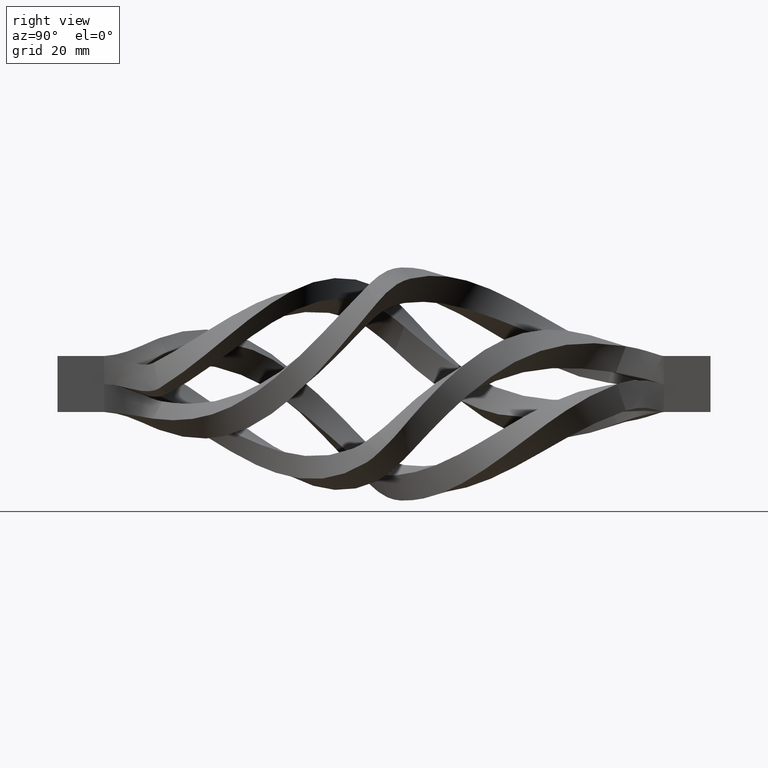
[diagram: clean part render]
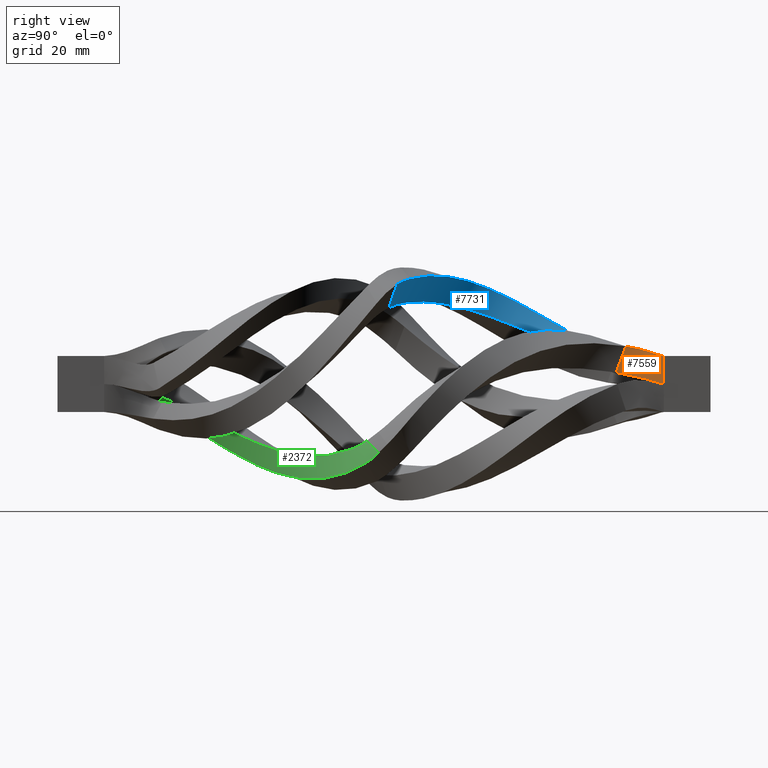
[diagram: same view with three faces highlighted in distinct colors, each labeled with its STEP entity id]
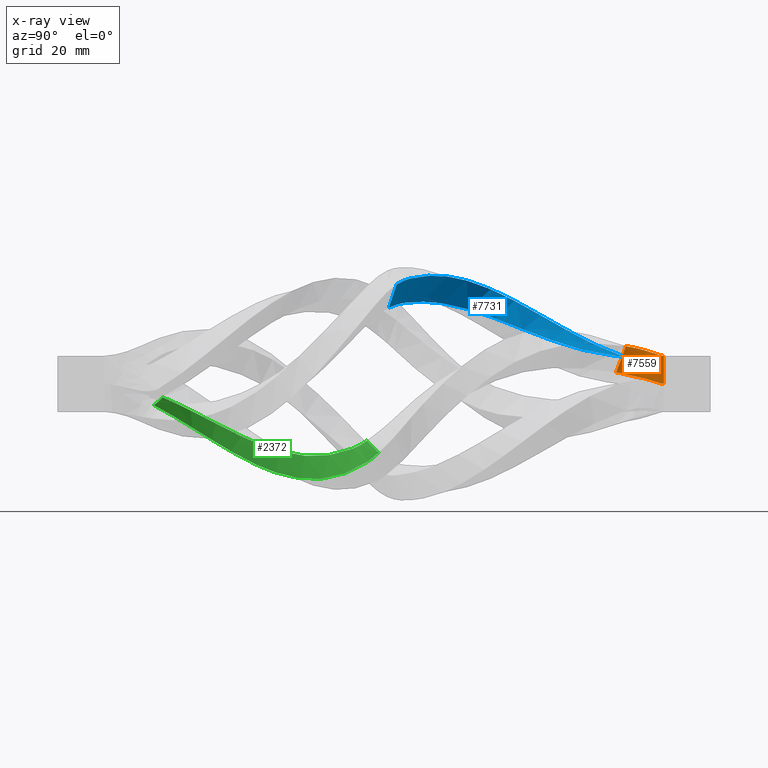
[diagram: x-ray of the same camera — body ghosted, the three highlighted faces saturated]
A machine part, right view with three faces highlighted in distinct colors.
The next image is the same camera in x-ray (body ghosted, the three faces saturated) — at least one of them is partly hidden behind the body in this view.
Their STEP definitions:

[orange] entity #7559 — the highlighted face is a freeform B-spline surface patch.
#423 = CARTESIAN_POINT ( 'NONE',  ( 6.000000000000000000, 60.00000000000000000, -7.347880794884119736E-16 ) ) ;
#563 = VERTEX_POINT ( 'NONE', #2955 ) ;
#665 = VERTEX_POINT ( 'NONE', #13592 ) ;
#668 = CARTESIAN_POINT ( 'NONE',  ( 5.688859078053799756, 51.86558042383911982, 8.089690585374965437 ) ) ;
#828 = LINE ( 'NONE', #11371, #16230 ) ;
#1740 = DIRECTION ( 'NONE',  ( -0.000000000000000000, -0.000000000000000000, 1.000000000000000000 ) ) ;
#1822 = CARTESIAN_POINT ( 'NONE',  ( 5.990876172867924510, 49.75534274506112808, 2.481154001424951350 ) ) ;
#2133 = CARTESIAN_POINT ( 'NONE',  ( 6.000000000000000888, 58.93945148934142253, 2.999999999999999112 ) ) ;
#2955 = CARTESIAN_POINT ( 'NONE',  ( 6.000000000000000000, 60.00000000000000000, 5.999999999999998224 ) ) ;
#3155 = CARTESIAN_POINT ( 'NONE',  ( 6.000000000000000888, 58.81879873133640757, -7.347880794884119736E-16 ) ) ;
#3326 = CARTESIAN_POINT ( 'NONE',  ( 6.000000000000000000, 60.00000000000000000, 5.999999999999998224 ) ) ;
#3830 = VERTEX_POINT ( 'NONE', #9400 ) ;
#3895 = EDGE_CURVE ( 'NONE', #9409, #563, #11530, .T. ) ;
#4633 = CARTESIAN_POINT ( 'NONE',  ( 5.739195260522820696, 51.51387414404278786, 7.154934488049963015 ) ) ;
#4687 = CARTESIAN_POINT ( 'NONE',  ( 6.000000000000000888, 59.05974668449263021, 5.999999999999998224 ) ) ;
#4798 = CARTESIAN_POINT ( 'NONE',  ( 6.000000000000000888, 60.00000000000000000, 2.999999999999999112 ) ) ;
#5890 = CARTESIAN_POINT ( 'NONE',  ( 6.000000000000000888, 60.00000000000000000, 0.9999999999999988898 ) ) ;
#6008 = CARTESIAN_POINT ( 'NONE',  ( 6.000000000000000888, 60.00000000000000000, -7.347880794884119736E-16 ) ) ;
#7217 = CARTESIAN_POINT ( 'NONE',  ( 5.103678342734527362, 55.98606579534537531, 2.551169762513719519 ) ) ;
#7270 = CARTESIAN_POINT ( 'NONE',  ( 4.604194961674395792, 56.18052296515681832, 4.463157269856725229 ) ) ;
#7290 = CARTESIAN_POINT ( 'NONE',  ( 4.149268215304976692, 56.40902049923965933, 7.375916144224031967 ) ) ;
#7377 = CARTESIAN_POINT ( 'NONE',  ( 6.000000000000000888, 58.81879873133640757, -7.347880794884119736E-16 ) ) ;
#7559 = ADVANCED_FACE ( 'NONE', ( #15977 ), #10293, .T. ) ;
#9078 = VECTOR ( 'NONE', #1740, 1000.000000000000000 ) ;
#9400 = CARTESIAN_POINT ( 'NONE',  ( 5.688859078053799756, 51.86558042383911982, 8.089690585374965437 ) ) ;
#9409 = VERTEX_POINT ( 'NONE', #12182 ) ;
#9952 = CARTESIAN_POINT ( 'NONE',  ( 5.688859078053799756, 51.86558042383911982, 8.089690585374965437 ) ) ;
#10180 = ORIENTED_EDGE ( 'NONE', *, *, #3895, .T. ) ;
#10293 = B_SPLINE_SURFACE_WITH_KNOTS ( 'NONE', 3, 3, ( 
 ( #9952, #12633, #4687, #13726 ),
 ( #4633, #13891, #11192, #12527 ),
 ( #15109, #7270, #2133, #4798 ),
 ( #16584, #7217, #15217, #5890 ),
 ( #16430, #13838, #7377, #6008 ) ),
 .UNSPECIFIED., .F., .F., .F.,
 ( 4, 1, 4 ),
 ( 4, 4 ),
 ( 0.000000000000000000, 0.5000000000000000000, 1.000000000000000000 ),
 ( 0.000000000000000000, 1.000000000000000000 ),
 .UNSPECIFIED. ) ;
#10623 = EDGE_CURVE ( 'NONE', #9409, #665, #15223, .T. ) ;
#10686 = ORIENTED_EDGE ( 'NONE', *, *, #13449, .F. ) ;
#11192 = CARTESIAN_POINT ( 'NONE',  ( 6.000000000000000888, 59.01964828610889668, 4.999999999999999112 ) ) ;
#11371 = CARTESIAN_POINT ( 'NONE',  ( 5.688859078053799756, 51.86558042383911982, 8.089690585374965437 ) ) ;
#11530 = LINE ( 'NONE', #423, #9078 ) ;
#12182 = CARTESIAN_POINT ( 'NONE',  ( 6.000000000000000000, 60.00000000000000000, -7.347880794884120722E-16 ) ) ;
#12242 = ORIENTED_EDGE ( 'NONE', *, *, #14324, .F. ) ;
#12527 = CARTESIAN_POINT ( 'NONE',  ( 6.000000000000000888, 60.00000000000000000, 4.999999999999999112 ) ) ;
#12633 = CARTESIAN_POINT ( 'NONE',  ( 4.149268215304975804, 56.40902049923965933, 7.375916144224031967 ) ) ;
#13449 = EDGE_CURVE ( 'NONE', #665, #3830, #828, .T. ) ;
#13592 = CARTESIAN_POINT ( 'NONE',  ( 5.990876172867924510, 49.75534274506112808, 2.481154001424951350 ) ) ;
#13629 = CARTESIAN_POINT ( 'NONE',  ( 6.000000000000000000, 60.00000000000000000, -7.347880794884120722E-16 ) ) ;
#13726 = CARTESIAN_POINT ( 'NONE',  ( 6.000000000000000888, 60.00000000000000000, 5.999999999999998224 ) ) ;
#13754 = B_SPLINE_CURVE_WITH_KNOTS ( 'NONE', 3,
 ( #668, #7290, #13858, #3326 ),
 .UNSPECIFIED., .F., .F.,
 ( 4, 4 ),
 ( 0.000000000000000000, 1.000000000000000000 ),
 .UNSPECIFIED. ) ;
#13838 = CARTESIAN_POINT ( 'NONE',  ( 5.353420033264594480, 55.88883721043965380, 1.595176008842216886 ) ) ;
#13858 = CARTESIAN_POINT ( 'NONE',  ( 6.000000000000000888, 59.05974668449263021, 6.000000000000000888 ) ) ;
#13891 = CARTESIAN_POINT ( 'NONE',  ( 4.300910464094782171, 56.33285465454537899, 6.404996519434929425 ) ) ;
#14271 = ORIENTED_EDGE ( 'NONE', *, *, #10623, .F. ) ;
#14324 = EDGE_CURVE ( 'NONE', #3830, #563, #13754, .T. ) ;
#15109 = CARTESIAN_POINT ( 'NONE',  ( 5.839867625460862577, 50.81046158445012395, 5.285422293399958171 ) ) ;
#15217 = CARTESIAN_POINT ( 'NONE',  ( 6.000000000000000888, 58.85901631733808159, 0.9999999999999988898 ) ) ;
#15223 = B_SPLINE_CURVE_WITH_KNOTS ( 'NONE', 3,
 ( #13629, #3155, #16220, #1822 ),
 .UNSPECIFIED., .F., .F.,
 ( 4, 4 ),
 ( 0.000000000000000000, 1.000000000000000000 ),
 .UNSPECIFIED. ) ;
#15335 = EDGE_LOOP ( 'NONE', ( #10686, #14271, #10180, #12242 ) ) ;
#15336 = DIRECTION ( 'NONE',  ( -0.05033618246902087090, 0.3517062797963322329, 0.9347560973250024219 ) ) ;
#15977 = FACE_OUTER_BOUND ( 'NONE', #15335, .T. ) ;
#16220 = CARTESIAN_POINT ( 'NONE',  ( 5.353420033264594480, 55.88883721043965380, 1.595176008842216886 ) ) ;
#16230 = VECTOR ( 'NONE', #15336, 1000.000000000000227 ) ;
#16430 = CARTESIAN_POINT ( 'NONE',  ( 5.990876172867924510, 49.75534274506112808, 2.481154001424951350 ) ) ;
#16584 = CARTESIAN_POINT ( 'NONE',  ( 5.940539990398903569, 50.10704902485746004, 3.415910098749953772 ) ) ;

[blue] entity #7731 — the highlighted face is a freeform B-spline surface patch.
#210 = B_SPLINE_CURVE_WITH_KNOTS ( 'NONE', 3,
 ( #8648, #11308, #7378, #9847, #4744, #8748, #6059, #858, #16531, #10062 ),
 .UNSPECIFIED., .F., .F.,
 ( 4, 2, 2, 2, 4 ),
 ( 0.000000000000000000, 0.1250000000000000000, 0.2500000000000000000, 0.3750000000000000555, 0.4538396521845925458 ),
 .UNSPECIFIED. ) ;
#308 = VERTEX_POINT ( 'NONE', #12635 ) ;
#331 = EDGE_CURVE ( 'NONE', #640, #421, #210, .T. ) ;
#409 = CARTESIAN_POINT ( 'NONE',  ( -2.481154001424930478, 49.75534274506112808, 5.990876172867933391 ) ) ;
#419 = CARTESIAN_POINT ( 'NONE',  ( -7.871336419445845500, 35.19891375716233739, 13.73985255241179360 ) ) ;
#421 = VERTEX_POINT ( 'NONE', #3588 ) ;
#640 = VERTEX_POINT ( 'NONE', #409 ) ;
#858 = CARTESIAN_POINT ( 'NONE',  ( 7.896205514842380424, 9.627354338902897268, 17.68805363085553850 ) ) ;
#995 = CARTESIAN_POINT ( 'NONE',  ( 13.23155807589161093, 3.255832955249024607, 17.16654772645953386 ) ) ;
#1117 = EDGE_CURVE ( 'NONE', #640, #4060, #2533, .T. ) ;
#1434 = CARTESIAN_POINT ( 'NONE',  ( -1.501488303775448729, 49.38673902164023133, 6.043630716493420429 ) ) ;
#1489 = CARTESIAN_POINT ( 'NONE',  ( -2.562942253250463764, 28.92200941172778883, 12.10434559238648156 ) ) ;
#1543 = CARTESIAN_POINT ( 'NONE',  ( -3.306979992346402497, 33.08867607838434566, 10.32305276607643663 ) ) ;
#1855 = CARTESIAN_POINT ( 'NONE',  ( 14.77120416769230893, 5.611525247894569191, 22.58102704819105710 ) ) ;
#2406 = CARTESIAN_POINT ( 'NONE',  ( 14.89051244037024979, 1.018812119815129202, 16.31904850140109531 ) ) ;
#2533 = LINE ( 'NONE', #7129, #5633 ) ;
#2849 = FACE_OUTER_BOUND ( 'NONE', #9331, .T. ) ;
#3221 = CARTESIAN_POINT ( 'NONE',  ( 14.31085686850480521, 6.038953362827090388, 23.14983347679098813 ) ) ;
#3395 = ORIENTED_EDGE ( 'NONE', *, *, #3815, .T. ) ;
#3588 = CARTESIAN_POINT ( 'NONE',  ( 12.29236199166848031, 4.374255416700081334, 17.37559370592639496 ) ) ;
#3815 = EDGE_CURVE ( 'NONE', #9228, #9003, #12150, .T. ) ;
#3841 = CARTESIAN_POINT ( 'NONE',  ( 14.51225737099293056, 1.578695944257694661, 16.58619950043980751 ) ) ;
#3959 = CARTESIAN_POINT ( 'NONE',  ( 15.78817477883093545, 1.563561243080954011, 18.01005494026538756 ) ) ;
#4060 = VERTEX_POINT ( 'NONE', #7392 ) ;
#4102 = CARTESIAN_POINT ( 'NONE',  ( -1.883949913618561789, 28.55340568830689918, 11.37577328924151665 ) ) ;
#4156 = CARTESIAN_POINT ( 'NONE',  ( 12.64379073371017981, 3.928539582183664169, 17.69712817394390214 ) ) ;
#4268 = CARTESIAN_POINT ( 'NONE',  ( 0.5734308522061156710, 20.58867607839445668, 15.30509392793214474 ) ) ;
#4317 = CARTESIAN_POINT ( 'NONE',  ( 9.688626555880240687, 10.19891375716430026, 23.57156289030776009 ) ) ;
#4744 = CARTESIAN_POINT ( 'NONE',  ( -2.562942253250463764, 28.92200941172778883, 12.10434559238648156 ) ) ;
#5480 = CARTESIAN_POINT ( 'NONE',  ( 2.969982990981159698, 16.42200941173593165, 16.70657156214826244 ) ) ;
#5598 = CARTESIAN_POINT ( 'NONE',  ( 0.9654777601131434572, 20.22007235497356703, 14.38959001194128184 ) ) ;
#5633 = VECTOR ( 'NONE', #7352, 1000.000000000000000 ) ;
#5702 = CARTESIAN_POINT ( 'NONE',  ( 18.85640108571281104, 1.865580423839115154, 21.28252657224317801 ) ) ;
#5726 = CARTESIAN_POINT ( 'NONE',  ( -1.671017872391127757, 22.69891375717245197, 20.54630755611553994 ) ) ;
#5832 = CARTESIAN_POINT ( 'NONE',  ( 1.689091600227907053, 18.53224709051392338, 22.26239621908423061 ) ) ;
#5910 = CARTESIAN_POINT ( 'NONE',  ( 17.56678325862629109, 2.757052910245190169, 21.36584081101665333 ) ) ;
#6059 = CARTESIAN_POINT ( 'NONE',  ( 2.969982990981159698, 16.42200941173593165, 16.70657156214826244 ) ) ;
#6353 = B_SPLINE_CURVE_WITH_KNOTS ( 'NONE', 3,
 ( #11549, #6354, #11429, #8985 ),
 .UNSPECIFIED., .F., .F.,
 ( 4, 4 ),
 ( 3.737071103925071998E-16, 0.004174167867119415662 ),
 .UNSPECIFIED. ) ;
#6354 = CARTESIAN_POINT ( 'NONE',  ( 15.79547226800087323, 4.669048107120935320, 22.34701225733667229 ) ) ;
#6736 = CARTESIAN_POINT ( 'NONE',  ( -3.082959138526154774, 45.58913488375011980, 6.423871555035034042 ) ) ;
#6908 = CARTESIAN_POINT ( 'NONE',  ( -2.481154001424930478, 49.75534274506112808, 5.990876172867933391 ) ) ;
#7129 = CARTESIAN_POINT ( 'NONE',  ( -8.089690585374945897, 51.86558042383911982, 5.688859078053828178 ) ) ;
#7352 = DIRECTION ( 'NONE',  ( -0.9347560973250026439, 0.3517062797963322329, -0.05033618246901760962 ) ) ;
#7378 = CARTESIAN_POINT ( 'NONE',  ( -3.560167904446282172, 41.42200941173791051, 7.477032805050003006 ) ) ;
#7392 = CARTESIAN_POINT ( 'NONE',  ( -8.089690585374945897, 51.86558042383911982, 5.688859078053828178 ) ) ;
#7416 = ORIENTED_EDGE ( 'NONE', *, *, #331, .F. ) ;
#7731 = ADVANCED_FACE ( 'NONE', ( #2849 ), #10891, .T. ) ;
#7883 = B_SPLINE_CURVE_WITH_KNOTS ( 'NONE', 3,
 ( #14767, #10857, #14825, #419, #13553, #5726, #5832, #15002, #9725, #1855 ),
 .UNSPECIFIED., .F., .F.,
 ( 4, 2, 2, 2, 4 ),
 ( 0.000000000000000000, 0.1250000000000000000, 0.2500000000000000000, 0.3750000000000000000, 0.4625701184507730601 ),
 .UNSPECIFIED. ) ;
#8027 = CARTESIAN_POINT ( 'NONE',  ( 14.89051244037024979, 1.018812119815129202, 16.31904850140109531 ) ) ;
#8055 = CARTESIAN_POINT ( 'NONE',  ( -2.509705452625734523, 32.72007235496344890, 9.726226571523675091 ) ) ;
#8222 = CARTESIAN_POINT ( 'NONE',  ( -9.012098891671152856, 43.53224709051590224, 9.145660649692288757 ) ) ;
#8225 = EDGE_CURVE ( 'NONE', #9003, #421, #16647, .T. ) ;
#8494 = ORIENTED_EDGE ( 'NONE', *, *, #9722, .T. ) ;
#8527 = EDGE_CURVE ( 'NONE', #4060, #308, #7883, .T. ) ;
#8648 = CARTESIAN_POINT ( 'NONE',  ( -2.481154001424930478, 49.75534274506112808, 5.990876172867933391 ) ) ;
#8748 = CARTESIAN_POINT ( 'NONE',  ( 0.5734308522061156710, 20.58867607839445668, 15.30509392793214474 ) ) ;
#8985 = CARTESIAN_POINT ( 'NONE',  ( 17.56678325862629109, 2.757052910245190169, 21.36584081101665333 ) ) ;
#9003 = VERTEX_POINT ( 'NONE', #2406 ) ;
#9058 = CARTESIAN_POINT ( 'NONE',  ( 12.76846861792104981, 3.817660044143598164, 17.29767923280266828 ) ) ;
#9228 = VERTEX_POINT ( 'NONE', #5910 ) ;
#9331 = EDGE_LOOP ( 'NONE', ( #8494, #3395, #14034, #7416, #14080, #9972 ) ) ;
#9477 = CARTESIAN_POINT ( 'NONE',  ( -7.871336419445845500, 35.19891375716233739, 13.73985255241179360 ) ) ;
#9722 = EDGE_CURVE ( 'NONE', #308, #9228, #6353, .T. ) ;
#9725 = CARTESIAN_POINT ( 'NONE',  ( 11.59851668856338591, 8.530863869279510681, 23.30589175563066462 ) ) ;
#9847 = CARTESIAN_POINT ( 'NONE',  ( -3.306979992346402497, 33.08867607838434566, 10.32305276607643663 ) ) ;
#9972 = ORIENTED_EDGE ( 'NONE', *, *, #8527, .T. ) ;
#10062 = CARTESIAN_POINT ( 'NONE',  ( 12.29236199166848031, 4.374255416700081334, 17.37559370592639496 ) ) ;
#10191 = CARTESIAN_POINT ( 'NONE',  ( 12.29236199166848031, 4.374255416700081334, 17.37559370592639496 ) ) ;
#10418 = CARTESIAN_POINT ( 'NONE',  ( 14.89051244037024979, 1.018812119815129202, 16.31904850140109531 ) ) ;
#10779 = CARTESIAN_POINT ( 'NONE',  ( -1.671017872391127757, 22.69891375717245197, 20.54630755611553994 ) ) ;
#10836 = CARTESIAN_POINT ( 'NONE',  ( -6.450139065575586805, 31.03224709050578412, 16.27538518889920738 ) ) ;
#10857 = CARTESIAN_POINT ( 'NONE',  ( -8.743912844424988506, 47.70121216039423473, 7.099997603294688098 ) ) ;
#10891 = B_SPLINE_SURFACE_WITH_KNOTS ( 'NONE', 1, 3, ( 
 ( #1434, #13471, #13371, #8055, #4102, #5598, #13249, #14574, #11993, #12103 ),
 ( #6908, #6736, #15893, #1543, #1489, #4268, #5480, #12050, #4156, #16058 ),
 ( #16008, #13312, #8222, #9477, #10836, #10779, #12159, #4317, #3221, #5702 ) ),
 .UNSPECIFIED., .F., .F., .F.,
 ( 2, 1, 2 ),
 ( 4, 2, 2, 2, 4 ),
 ( -0.1746740318059077091, 0.000000000000000000, 1.000000000000000000 ),
 ( 0.000000000000000000, 0.1250000000000000000, 0.2500000000000000000, 0.3750000000000000000, 0.5000000000000000000 ),
 .UNSPECIFIED. ) ;
#11308 = CARTESIAN_POINT ( 'NONE',  ( -3.082959138526154774, 45.58913488375011980, 6.423871555035034042 ) ) ;
#11429 = CARTESIAN_POINT ( 'NONE',  ( 16.73402622485937385, 3.726573686082967907, 21.93621844062487725 ) ) ;
#11549 = CARTESIAN_POINT ( 'NONE',  ( 14.77120416769230893, 5.611525247894569191, 22.58102704819105710 ) ) ;
#11993 = CARTESIAN_POINT ( 'NONE',  ( 12.35259757065851183, 3.559905098339928742, 16.74468215444614927 ) ) ;
#12050 = CARTESIAN_POINT ( 'NONE',  ( 9.011769354755154282, 8.088676078386306756, 17.91031437934369919 ) ) ;
#12103 = CARTESIAN_POINT ( 'NONE',  ( 15.86954119634394900, -0.6132609783597698927, 15.39959021188763266 ) ) ;
#12150 = B_SPLINE_CURVE_WITH_KNOTS ( 'NONE', 3,
 ( #16845, #15920, #3959, #8027 ),
 .UNSPECIFIED., .F., .F.,
 ( 4, 4 ),
 ( 3.576224061345498009E-18, 0.005971390650076215112 ),
 .UNSPECIFIED. ) ;
#12159 = CARTESIAN_POINT ( 'NONE',  ( 1.689091600227907053, 18.53224709051392338, 22.26239621908423061 ) ) ;
#12635 = CARTESIAN_POINT ( 'NONE',  ( 14.77120416769230893, 5.611525247894569191, 22.58102704819105710 ) ) ;
#13249 = CARTESIAN_POINT ( 'NONE',  ( 3.193721454509506952, 16.05340568831503845, 15.73611326931458443 ) ) ;
#13312 = CARTESIAN_POINT ( 'NONE',  ( -8.743912844424988506, 47.70121216039423473, 7.099997603294688098 ) ) ;
#13371 = CARTESIAN_POINT ( 'NONE',  ( -2.607857137780150936, 41.05340568831701376, 7.185566851842732916 ) ) ;
#13471 = CARTESIAN_POINT ( 'NONE',  ( -2.094137530850210815, 45.22020983035304909, 6.305769892176524394 ) ) ;
#13553 = CARTESIAN_POINT ( 'NONE',  ( -6.450139065575586805, 31.03224709050578412, 16.27538518889920738 ) ) ;
#14034 = ORIENTED_EDGE ( 'NONE', *, *, #8225, .T. ) ;
#14080 = ORIENTED_EDGE ( 'NONE', *, *, #1117, .T. ) ;
#14190 = CARTESIAN_POINT ( 'NONE',  ( 14.10324769908345921, 2.136389901893516630, 16.81048505293325945 ) ) ;
#14574 = CARTESIAN_POINT ( 'NONE',  ( 8.893539978477774000, 7.720072354965415329, 16.92144127687841504 ) ) ;
#14767 = CARTESIAN_POINT ( 'NONE',  ( -8.089690585374945897, 51.86558042383911982, 5.688859078053828178 ) ) ;
#14825 = CARTESIAN_POINT ( 'NONE',  ( -9.012098891671152856, 43.53224709051590224, 9.145660649692288757 ) ) ;
#15002 = CARTESIAN_POINT ( 'NONE',  ( 8.490939972524371271, 11.44657647547430379, 23.37555507657938847 ) ) ;
#15893 = CARTESIAN_POINT ( 'NONE',  ( -3.560167904446282172, 41.42200941173791051, 7.477032805050003006 ) ) ;
#15920 = CARTESIAN_POINT ( 'NONE',  ( 16.67925081541167742, 2.150762132664413517, 19.69052984273396234 ) ) ;
#16008 = CARTESIAN_POINT ( 'NONE',  ( -8.089690585374945897, 51.86558042383911982, 5.688859078053828178 ) ) ;
#16058 = CARTESIAN_POINT ( 'NONE',  ( 16.31368727022396925, -0.2446572549388778550, 16.27438286508103005 ) ) ;
#16531 = CARTESIAN_POINT ( 'NONE',  ( 10.04464422549537161, 7.001963662040213698, 17.74343094201081783 ) ) ;
#16647 = B_SPLINE_CURVE_WITH_KNOTS ( 'NONE', 3,
 ( #10418, #3841, #14190, #995, #9058, #10191 ),
 .UNSPECIFIED., .F., .F.,
 ( 4, 2, 4 ),
 ( 0.002085578456540579037, 0.004264486155504468301, 0.006443393854468356698 ),
 .UNSPECIFIED. ) ;
#16845 = CARTESIAN_POINT ( 'NONE',  ( 17.56678325862629109, 2.757052910245190169, 21.36584081101665333 ) ) ;

[green] entity #2372 — the highlighted face is a freeform B-spline surface patch.
#107 = B_SPLINE_CURVE_WITH_KNOTS ( 'NONE', 3,
 ( #1918, #11091, #6012, #752, #16253, #3415, #3190, #7276, #12363, #5835, #4698, #649, #15007, #9849, #9960 ),
 .UNSPECIFIED., .F., .F.,
 ( 4, 2, 2, 1, 1, 1, 2, 2, 4 ),
 ( 0.000000000000000000, 0.2499999999999902855, 0.3749999999999866773, 0.4374999999999849010, 0.4687499999999842903, 0.4843749999999828471, 0.4921874999999831801, 0.4999999999999835687, 1.000000000000000000 ),
 .UNSPECIFIED. ) ;
#247 = EDGE_CURVE ( 'NONE', #1937, #581, #13278, .T. ) ;
#252 = B_SPLINE_CURVE_WITH_KNOTS ( 'NONE', 3,
 ( #3850, #5177, #15637, #14320, #2564, #6433, #10320, #12958, #3738, #12900 ),
 .UNSPECIFIED., .F., .F.,
 ( 4, 2, 2, 2, 4 ),
 ( 0.5369479693597313252, 0.6250000000000000000, 0.7500000000000000000, 0.8750000000000000000, 0.9942052857296589385 ),
 .UNSPECIFIED. ) ;
#450 = CARTESIAN_POINT ( 'NONE',  ( 1.925302999129456571, -22.94357101209656946, -14.46179258143628310 ) ) ;
#581 = VERTEX_POINT ( 'NONE', #5660 ) ;
#649 = CARTESIAN_POINT ( 'NONE',  ( -5.502870079988494645, -48.45934849062846439, -3.847961226231278786 ) ) ;
#730 = CARTESIAN_POINT ( 'NONE',  ( 20.57069826401018275, -4.173495097007560162, -17.58015250693530263 ) ) ;
#752 = CARTESIAN_POINT ( 'NONE',  ( -4.792916099916925354, -48.07123800673850411, -3.504732002196979224 ) ) ;
#838 = CARTESIAN_POINT ( 'NONE',  ( 19.46140407676698914, -2.110237678777993064, -11.58478618451146325 ) ) ;
#1016 = CARTESIAN_POINT ( 'NONE',  ( 4.685942898503458132, -19.13273502714634589, -14.67193410522135899 ) ) ;
#1119 = CARTESIAN_POINT ( 'NONE',  ( 17.89959494004027363, -3.670163752019282466, -12.15990376714979782 ) ) ;
#1238 = EDGE_CURVE ( 'NONE', #9395, #15308, #252, .T. ) ;
#1246 = CARTESIAN_POINT ( 'NONE',  ( 18.82306356033108230, -3.219364478633718551, -12.61547157010931741 ) ) ;
#1294 = B_SPLINE_CURVE_WITH_KNOTS ( 'NONE', 3,
 ( #4428, #3219, #12388, #7020, #450, #8560, #9645, #5754, #16165, #10943 ),
 .UNSPECIFIED., .F., .F.,
 ( 4, 2, 2, 2, 4 ),
 ( 0.5456399617030078808, 0.6250000000000000000, 0.7500000000000000000, 0.8750000000000000000, 0.9534304676751663710 ),
 .UNSPECIFIED. ) ;
#1918 = CARTESIAN_POINT ( 'NONE',  ( -3.744984471185448083, -47.45303054060136105, -2.883072554582832403 ) ) ;
#1937 = VERTEX_POINT ( 'NONE', #1119 ) ;
#2068 = CARTESIAN_POINT ( 'NONE',  ( 3.206194389843958437, -20.83333333331857773, -20.01761723837864793 ) ) ;
#2119 = CARTESIAN_POINT ( 'NONE',  ( 7.308853124259217182, -16.66666666663408236, -20.79692714708302503 ) ) ;
#2363 = B_SPLINE_CURVE_WITH_KNOTS ( 'NONE', 3,
 ( #10440, #5014, #6328, #15531, #10330, #2573, #7752, #1246, #7639, #16860 ),
 .UNSPECIFIED., .F., .F.,
 ( 4, 3, 3, 4 ),
 ( 8.182674270850422113E-18, 0.002228085361064247819, 0.004688705739107873471, 0.006374819136601633102 ),
 .UNSPECIFIED. ) ;
#2372 = ADVANCED_FACE ( 'NONE', ( #10102 ), #7398, .T. ) ;
#2404 = CARTESIAN_POINT ( 'NONE',  ( -2.642342616001525091, -52.11023767877799884, -1.176817918657999673 ) ) ;
#2564 = CARTESIAN_POINT ( 'NONE',  ( 3.206194389843958437, -20.83333333331857773, -20.01761723837864793 ) ) ;
#2573 = CARTESIAN_POINT ( 'NONE',  ( 19.96133559539782709, -2.670944248171018387, -13.17597740720851363 ) ) ;
#2841 = VERTEX_POINT ( 'NONE', #13082 ) ;
#3128 = CARTESIAN_POINT ( 'NONE',  ( 15.54221954633418967, -6.677204624968187119, -13.88375974202546637 ) ) ;
#3190 = CARTESIAN_POINT ( 'NONE',  ( -5.264533078400011945, -48.33150293549421406, -3.738905997707514306 ) ) ;
#3219 = CARTESIAN_POINT ( 'NONE',  ( 13.21466162151130597, -9.322280606939452596, -14.91693324537896359 ) ) ;
#3415 = CARTESIAN_POINT ( 'NONE',  ( -5.156603167105293650, -48.27265633894806740, -3.687127710220951649 ) ) ;
#3453 = CARTESIAN_POINT ( 'NONE',  ( -3.206194389844457593, -29.16666666668144003, -16.72266413585992240 ) ) ;
#3618 = CARTESIAN_POINT ( 'NONE',  ( 17.89959494004027363, -3.670163752019282466, -12.15990376714979782 ) ) ;
#3738 = CARTESIAN_POINT ( 'NONE',  ( -8.021552348902119434, -45.44813392395698770, -6.596782052346583214 ) ) ;
#3850 = CARTESIAN_POINT ( 'NONE',  ( 20.86003899735237965, -3.697801499753341936, -16.81025835379850619 ) ) ;
#3971 = CARTESIAN_POINT ( 'NONE',  ( 22.50874354534826693, -1.990862580611321153, -15.56972698206046246 ) ) ;
#4428 = CARTESIAN_POINT ( 'NONE',  ( 15.54221954633418967, -6.677204624968187119, -13.88375974202546637 ) ) ;
#4698 = CARTESIAN_POINT ( 'NONE',  ( -5.495339862539137421, -48.45533909466228550, -3.844590283873442704 ) ) ;
#4778 = CARTESIAN_POINT ( 'NONE',  ( -5.507995980437145889, -33.33333333334008586, -14.22728425483480130 ) ) ;
#4831 = CARTESIAN_POINT ( 'NONE',  ( 12.11652040694255206, -10.44357101214390582, -15.41058954648980794 ) ) ;
#4894 = CARTESIAN_POINT ( 'NONE',  ( 16.41739467692886123, -5.658642207063322438, -13.43550320578311563 ) ) ;
#5011 = CARTESIAN_POINT ( 'NONE',  ( 11.46105685149253972, -10.79940169387817761, -14.70726409737672213 ) ) ;
#5014 = CARTESIAN_POINT ( 'NONE',  ( 22.54500788658898358, -1.452157125914134816, -14.44478759546961477 ) ) ;
#5067 = CARTESIAN_POINT ( 'NONE',  ( 1.709317633419639604, -23.29940169383084125, -13.52496309765003701 ) ) ;
#5177 = CARTESIAN_POINT ( 'NONE',  ( 17.89002939505458656, -6.633252906475789246, -18.64158208520242255 ) ) ;
#5660 = CARTESIAN_POINT ( 'NONE',  ( 15.54221954633418967, -6.677204624968187119, -13.88375974202546637 ) ) ;
#5754 = CARTESIAN_POINT ( 'NONE',  ( -4.379310946182334519, -42.22458660127931296, -5.268605671281044067 ) ) ;
#5835 = CARTESIAN_POINT ( 'NONE',  ( -5.477689830299834917, -48.44593346211443929, -3.836669114360415023 ) ) ;
#6012 = CARTESIAN_POINT ( 'NONE',  ( -4.349285607719246549, -47.81831152284541986, -3.263846608040394059 ) ) ;
#6044 = CARTESIAN_POINT ( 'NONE',  ( 16.00371721929989732, -8.333333333365912310, -19.58162914298600654 ) ) ;
#6315 = CARTESIAN_POINT ( 'NONE',  ( 17.56866734672370001, -4.162589882264164487, -12.52701778029246604 ) ) ;
#6328 = CARTESIAN_POINT ( 'NONE',  ( 21.93016473859206172, -1.739551736201305765, -14.14316380642242699 ) ) ;
#6433 = CARTESIAN_POINT ( 'NONE',  ( -3.206194389844457593, -29.16666666668144003, -16.72266413585992240 ) ) ;
#6441 = CARTESIAN_POINT ( 'NONE',  ( -1.848790184614109267, -52.46606836051226708, -0.6598553903376261909 ) ) ;
#7020 = CARTESIAN_POINT ( 'NONE',  ( 5.064404399694200087, -18.77690434541207409, -15.55571351888310261 ) ) ;
#7276 = CARTESIAN_POINT ( 'NONE',  ( -5.389190804616990960, -48.39862195317259363, -3.796575353863541835 ) ) ;
#7398 = B_SPLINE_SURFACE_WITH_KNOTS ( 'NONE', 1, 3, ( 
 ( #8677, #730, #6044, #2119, #2068, #3453, #4778, #15254, #7417, #16567 ),
 ( #838, #11346, #4831, #7473, #16621, #8789, #11399, #8902, #11756, #2404 ),
 ( #12844, #11583, #5011, #1016, #5067, #14151, #16968, #14269, #10269, #6441 ) ),
 .UNSPECIFIED., .F., .F., .F.,
 ( 2, 1, 2 ),
 ( 4, 2, 2, 2, 4 ),
 ( 0.000000000000000000, 1.000000000000000000, 1.168621139368683615 ),
 ( 0.5000000000000000000, 0.6250000000000000000, 0.7500000000000000000, 0.8750000000000000000, 1.000000000000000000 ),
 .UNSPECIFIED. ) ;
#7417 = CARTESIAN_POINT ( 'NONE',  ( -8.034543373215420559, -45.83455923405127663, -6.348309091203531374 ) ) ;
#7473 = CARTESIAN_POINT ( 'NONE',  ( 5.064404399694200087, -18.77690434541207409, -15.55571351888310261 ) ) ;
#7639 = CARTESIAN_POINT ( 'NONE',  ( 18.36091090178780050, -3.443867057402481890, -12.38764073584170511 ) ) ;
#7752 = CARTESIAN_POINT ( 'NONE',  ( 19.28589992136754105, -2.996369609247115928, -12.84338060590274644 ) ) ;
#7972 = EDGE_CURVE ( 'NONE', #9395, #12827, #11934, .T. ) ;
#8444 = ORIENTED_EDGE ( 'NONE', *, *, #11800, .T. ) ;
#8560 = CARTESIAN_POINT ( 'NONE',  ( -2.529337188758125965, -31.27690434545943177, -11.06141562490225105 ) ) ;
#8677 = CARTESIAN_POINT ( 'NONE',  ( 24.46954778392914776, 0.000000000000000000, -14.12750000000028905 ) ) ;
#8789 = CARTESIAN_POINT ( 'NONE',  ( -2.529337188758125965, -31.27690434545943177, -11.06141562490225105 ) ) ;
#8902 = CARTESIAN_POINT ( 'NONE',  ( -4.502915263910284516, -43.77690434543792009, -4.465837052555879261 ) ) ;
#8978 = EDGE_CURVE ( 'NONE', #12827, #1937, #2363, .T. ) ;
#9395 = VERTEX_POINT ( 'NONE', #9452 ) ;
#9452 = CARTESIAN_POINT ( 'NONE',  ( 20.86003899735237965, -3.697801499753341936, -16.81025835379850619 ) ) ;
#9469 = CARTESIAN_POINT ( 'NONE',  ( 21.74163669749093231, -2.826461822254640932, -16.26666051877265318 ) ) ;
#9645 = CARTESIAN_POINT ( 'NONE',  ( -3.839368135791301651, -35.44357101211807759, -8.775353267608577923 ) ) ;
#9750 = ORIENTED_EDGE ( 'NONE', *, *, #8978, .T. ) ;
#9849 = CARTESIAN_POINT ( 'NONE',  ( -6.806110956468737427, -49.12700358733236072, -4.365023121987259280 ) ) ;
#9960 = CARTESIAN_POINT ( 'NONE',  ( -7.438691302499062630, -49.42068362224298284, -4.539131831124992189 ) ) ;
#10102 = FACE_OUTER_BOUND ( 'NONE', #10575, .T. ) ;
#10269 = CARTESIAN_POINT ( 'NONE',  ( -3.160611957827742291, -48.29852063399013673, -1.806580876736561425 ) ) ;
#10320 = CARTESIAN_POINT ( 'NONE',  ( -5.507995980435037353, -33.33333333334008586, -14.22728425483902015 ) ) ;
#10330 = CARTESIAN_POINT ( 'NONE',  ( 20.63823394222815111, -2.348718327795989325, -13.50874554166035502 ) ) ;
#10440 = CARTESIAN_POINT ( 'NONE',  ( 23.16056451370888780, -1.166480993551982648, -14.74657432149664338 ) ) ;
#10575 = EDGE_LOOP ( 'NONE', ( #8444, #16866, #12707, #16548, #9750, #15972 ) ) ;
#10943 = CARTESIAN_POINT ( 'NONE',  ( -3.744984471185448083, -47.45303054060136105, -2.883072554582832403 ) ) ;
#11091 = CARTESIAN_POINT ( 'NONE',  ( -4.048066332015382685, -47.64034165301556101, -3.084356486547064957 ) ) ;
#11346 = CARTESIAN_POINT ( 'NONE',  ( 16.00715169050397790, -6.283633022192522510, -14.16185864988552368 ) ) ;
#11399 = CARTESIAN_POINT ( 'NONE',  ( -3.839368135791301651, -35.44357101211807759, -8.775353267608577923 ) ) ;
#11458 = CARTESIAN_POINT ( 'NONE',  ( 17.20530783612921866, -4.657281022271919646, -12.85697952385019960 ) ) ;
#11583 = CARTESIAN_POINT ( 'NONE',  ( 15.23764126771730965, -6.639446883362281504, -13.58546204501281807 ) ) ;
#11756 = CARTESIAN_POINT ( 'NONE',  ( -3.863874838141093448, -47.94299396703064531, -2.461909931146819552 ) ) ;
#11800 = EDGE_CURVE ( 'NONE', #581, #2841, #1294, .T. ) ;
#11934 = B_SPLINE_CURVE_WITH_KNOTS ( 'NONE', 3,
 ( #12093, #9469, #3971, #15644 ),
 .UNSPECIFIED., .F., .F.,
 ( 4, 4 ),
 ( 0.000000000000000000, 0.003990153614222281299 ),
 .UNSPECIFIED. ) ;
#12093 = CARTESIAN_POINT ( 'NONE',  ( 20.86003899735237965, -3.697801499753341936, -16.81025835379850619 ) ) ;
#12288 = CARTESIAN_POINT ( 'NONE',  ( -7.438691302499062630, -49.42068362224298284, -4.539131831124992189 ) ) ;
#12363 = CARTESIAN_POINT ( 'NONE',  ( -5.451190532499031072, -48.43179759231381354, -3.824740323058620106 ) ) ;
#12388 = CARTESIAN_POINT ( 'NONE',  ( 10.82908718895861711, -11.96490306889893773, -15.43708335665868070 ) ) ;
#12707 = ORIENTED_EDGE ( 'NONE', *, *, #1238, .F. ) ;
#12827 = VERTEX_POINT ( 'NONE', #16986 ) ;
#12844 = CARTESIAN_POINT ( 'NONE',  ( 18.61692517874320529, -2.466068360512264412, -11.15603088385524444 ) ) ;
#12853 = CARTESIAN_POINT ( 'NONE',  ( 15.99056023079353395, -6.167702728772127330, -13.68474698676053691 ) ) ;
#12900 = CARTESIAN_POINT ( 'NONE',  ( -7.438691302499062630, -49.42068362224298284, -4.539131831124992189 ) ) ;
#12958 = CARTESIAN_POINT ( 'NONE',  ( -7.863814158604731652, -41.47350952431553850, -9.150656103966726462 ) ) ;
#13082 = CARTESIAN_POINT ( 'NONE',  ( -3.744984471185448083, -47.45303054060136105, -2.883072554582832403 ) ) ;
#13278 = B_SPLINE_CURVE_WITH_KNOTS ( 'NONE', 3,
 ( #3618, #6315, #11458, #4894, #12853, #3128 ),
 .UNSPECIFIED., .F., .F.,
 ( 4, 2, 4 ),
 ( 0.001728274321880695187, 0.003818486972016873517, 0.005908699622153051195 ),
 .UNSPECIFIED. ) ;
#13337 = EDGE_CURVE ( 'NONE', #2841, #15308, #107, .T. ) ;
#14151 = CARTESIAN_POINT ( 'NONE',  ( -2.415204756321050361, -31.63273502719370711, -10.10680945073530523 ) ) ;
#14269 = CARTESIAN_POINT ( 'NONE',  ( -3.926770590944334671, -44.13273502717219543, -3.696190071333827820 ) ) ;
#14320 = CARTESIAN_POINT ( 'NONE',  ( 7.308853124259218959, -16.66666666663408236, -20.79692714708302859 ) ) ;
#15007 = CARTESIAN_POINT ( 'NONE',  ( -6.159076543263795500, -48.80832149282158383, -4.140674350106611001 ) ) ;
#15254 = CARTESIAN_POINT ( 'NONE',  ( -7.919715050242130516, -41.66666666665992835, -9.030193479653952693 ) ) ;
#15308 = VERTEX_POINT ( 'NONE', #12288 ) ;
#15531 = CARTESIAN_POINT ( 'NONE',  ( 21.31623496262213635, -2.029029709912169910, -13.84168615432774274 ) ) ;
#15637 = CARTESIAN_POINT ( 'NONE',  ( 14.71868693061753675, -9.564932312013992188, -19.76124031665928982 ) ) ;
#15644 = CARTESIAN_POINT ( 'NONE',  ( 23.16056451370888780, -1.166480993551982648, -14.74657432149664338 ) ) ;
#15972 = ORIENTED_EDGE ( 'NONE', *, *, #247, .T. ) ;
#16165 = CARTESIAN_POINT ( 'NONE',  ( -4.205284657235209167, -44.83870834941906480, -3.975996177081997374 ) ) ;
#16253 = CARTESIAN_POINT ( 'NONE',  ( -4.939437281751999365, -48.15320881358174177, -3.580304006033830699 ) ) ;
#16548 = ORIENTED_EDGE ( 'NONE', *, *, #7972, .T. ) ;
#16567 = CARTESIAN_POINT ( 'NONE',  ( -7.348469228349601146, -50.00000000000000000, -4.242640687119163978 ) ) ;
#16621 = CARTESIAN_POINT ( 'NONE',  ( 1.925302999129456571, -22.94357101209656946, -14.46179258143628310 ) ) ;
#16860 = CARTESIAN_POINT ( 'NONE',  ( 17.89959494004027363, -3.670163752019282466, -12.15990376714979782 ) ) ;
#16866 = ORIENTED_EDGE ( 'NONE', *, *, #13337, .T. ) ;
#16968 = CARTESIAN_POINT ( 'NONE',  ( -3.558002207444808551, -35.79940169385235293, -7.856042452783059460 ) ) ;
#16986 = CARTESIAN_POINT ( 'NONE',  ( 23.16056451370888780, -1.166480993551982648, -14.74657432149664338 ) ) ;